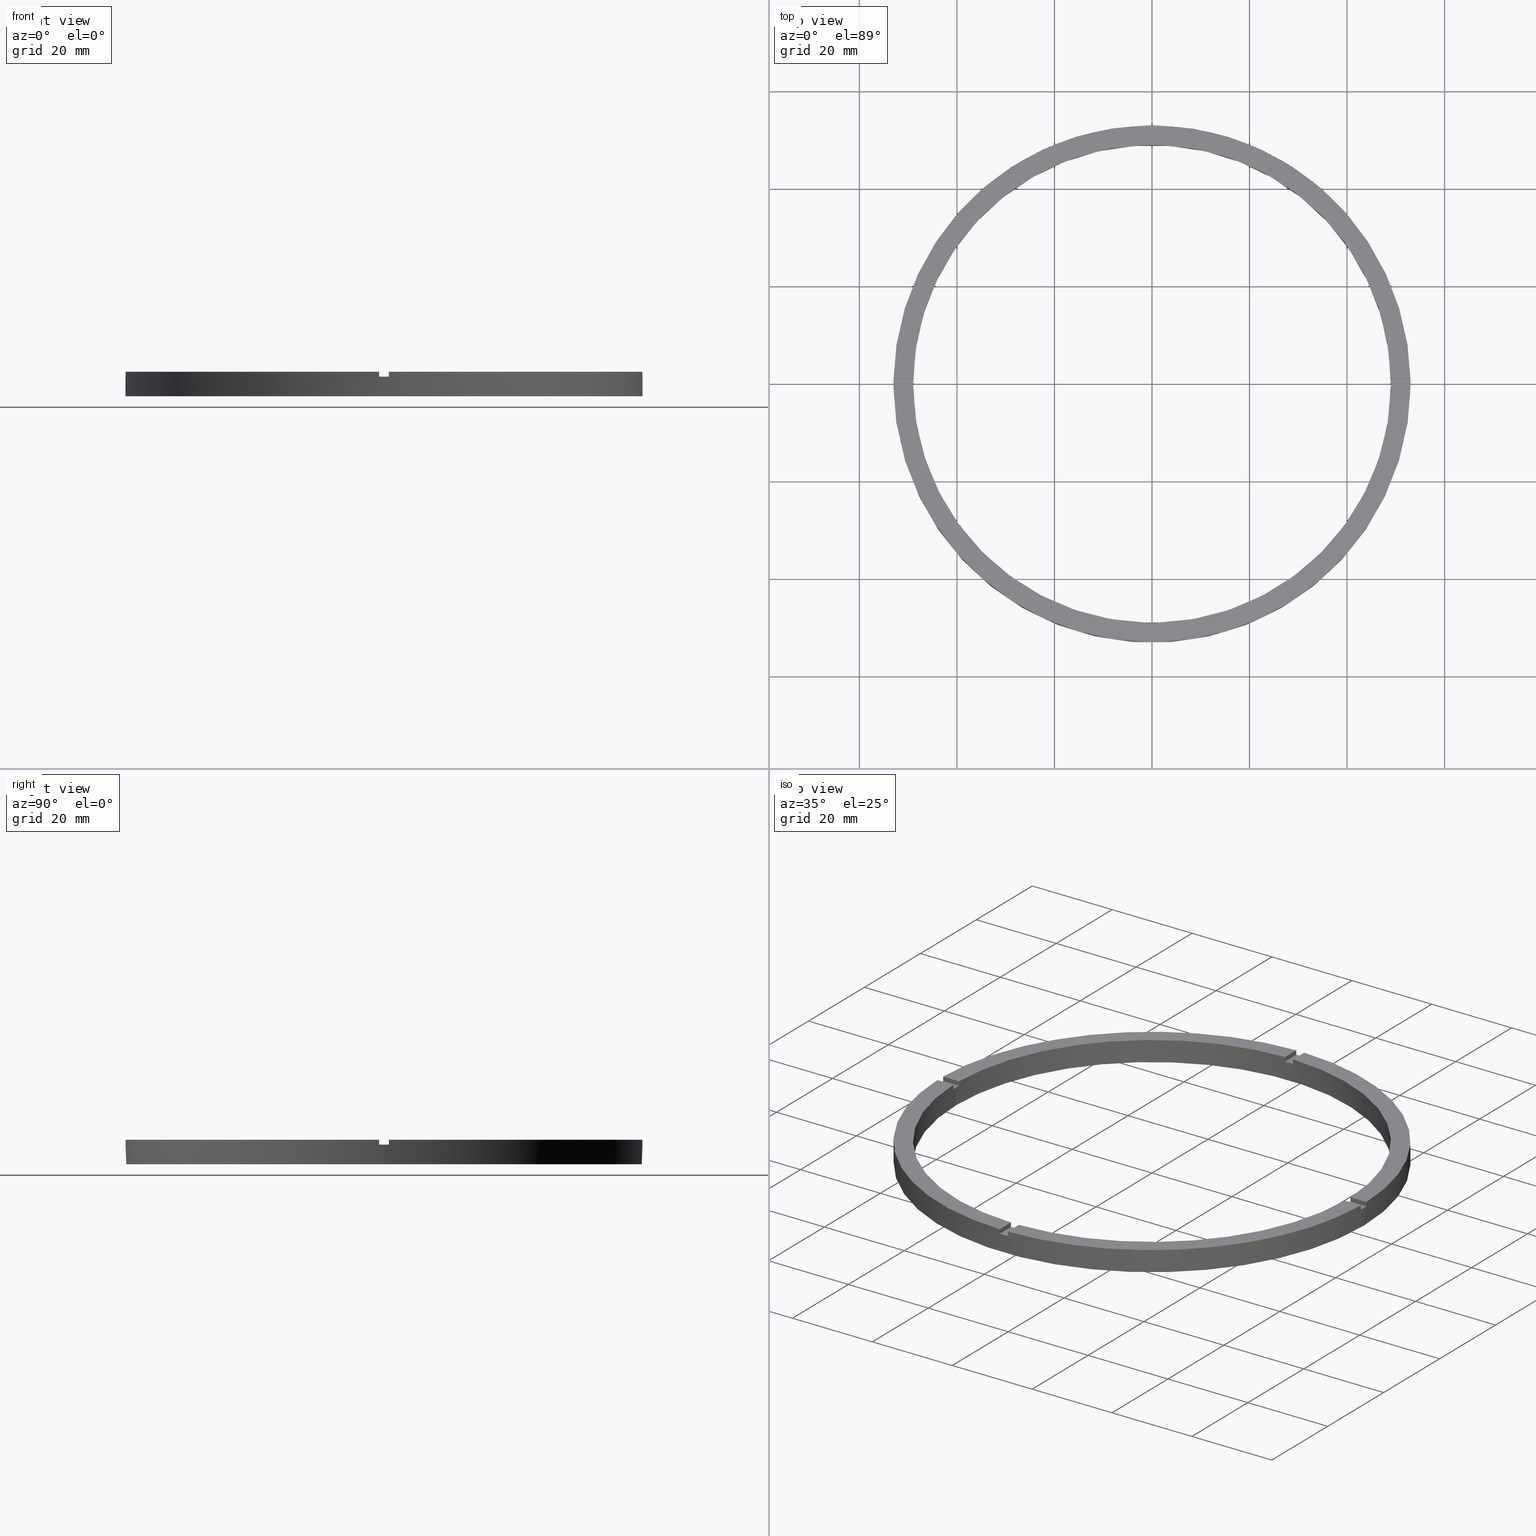
[diagram: canonical four-view strip — front | top / right | iso, engineering-drawing reading convention]
A machine part, canonical four-view strip (front | top / right | iso — engineering-drawing reading convention). The complete STEP part file that produces these views, byte-faithful:
ISO-10303-21;
HEADER;
FILE_DESCRIPTION (( 'STEP AP203' ),
    '1' );
FILE_NAME ('514217.step',
    '2024-12-26T02:49:05',
    ( 'MSI' ),
    ( '' ),
    'SwSTEP 2.0',
    'SolidWorks 2020',
    '' );
FILE_SCHEMA (( 'CONFIG_CONTROL_DESIGN' ));
ENDSEC;

DATA;
#1 = AXIS2_PLACEMENT_3D ( 'NONE', #781, #502, #198 ) ;
#2 = CARTESIAN_POINT ( 'NONE',  ( 0.000000000000000000, 0.000000000000000000, 5.000000000000000000 ) ) ;
#3 = AXIS2_PLACEMENT_3D ( 'NONE', #536, #745, #184 ) ;
#4 = APPROVAL ( #451, 'δָ��' ) ;
#5 = CARTESIAN_POINT ( 'NONE',  ( -52.99056519796708642, -1.000000000000032419, 4.000000000000000000 ) ) ;
#6 = CARTESIAN_POINT ( 'NONE',  ( -1.000000000000027089, 43.00000000000000000, 5.000000000000000000 ) ) ;
#7 = PLANE ( 'NONE',  #181 ) ;
#8 = EDGE_CURVE ( 'NONE', #417, #686, #447, .T. ) ;
#9 = DIRECTION ( 'NONE',  ( 0.000000000000000000, 0.000000000000000000, 1.000000000000000000 ) ) ;
#10 = CARTESIAN_POINT ( 'NONE',  ( 0.9999999999998432365, -48.98979485566356828, 4.000000000000000000 ) ) ;
#11 = DIRECTION ( 'NONE',  ( 0.000000000000000000, 0.000000000000000000, 1.000000000000000000 ) ) ;
#12 = CARTESIAN_POINT ( 'NONE',  ( 53.00000000000000711, 6.490628035480973107E-15, 4.000000000000000000 ) ) ;
#13 = DIRECTION ( 'NONE',  ( 0.000000000000000000, 0.000000000000000000, 1.000000000000000000 ) ) ;
#14 = ADVANCED_FACE ( 'NONE', ( #724 ), #534, .T. ) ;
#15 = EDGE_CURVE ( 'NONE', #193, #726, #308, .T. ) ;
#16 = CARTESIAN_POINT ( 'NONE',  ( 0.000000000000000000, 0.000000000000000000, 4.000000000000000000 ) ) ;
#17 = DIRECTION ( 'NONE',  ( 1.000000000000000000, 0.000000000000000000, -0.000000000000000000 ) ) ;
#18 = AXIS2_PLACEMENT_3D ( 'NONE', #273, #329, #337 ) ;
#19 = CARTESIAN_POINT ( 'NONE',  ( 48.98979485566356118, -1.000000000000154765, 5.000000000000000000 ) ) ;
#20 = DIRECTION ( 'NONE',  ( 1.000000000000000000, 6.505213034913025371E-17, 0.000000000000000000 ) ) ;
#21 = CC_DESIGN_PERSON_AND_ORGANIZATION_ASSIGNMENT ( #108, #390, ( #351 ) ) ;
#22 = DIRECTION ( 'NONE',  ( 1.000000000000000000, 0.000000000000000000, -0.000000000000000000 ) ) ;
#23 = DIRECTION ( 'NONE',  ( 0.000000000000000000, 0.000000000000000000, 1.000000000000000000 ) ) ;
#24 = AXIS2_PLACEMENT_3D ( 'NONE', #556, #476, #315 ) ;
#25 = DIRECTION ( 'NONE',  ( 0.000000000000000000, 0.000000000000000000, 1.000000000000000000 ) ) ;
#26 = DIRECTION ( 'NONE',  ( -0.000000000000000000, -0.000000000000000000, -1.000000000000000000 ) ) ;
#27 = AXIS2_PLACEMENT_3D ( 'NONE', #220, #144, #22 ) ;
#28 = CIRCLE ( 'NONE', #531, 49.00000000000000000 ) ;
#29 = DIRECTION ( 'NONE',  ( 1.000000000000000000, 0.000000000000000000, 0.000000000000000000 ) ) ;
#30 = VECTOR ( 'NONE', #519, 1000.000000000000000 ) ;
#31 = CARTESIAN_POINT ( 'NONE',  ( -43.00000000000019185, 0.9999999999999696909, 5.000000000000000000 ) ) ;
#32 = EDGE_CURVE ( 'NONE', #747, #772, #41, .T. ) ;
#33 = VECTOR ( 'NONE', #23, 1000.000000000000000 ) ;
#34 = VECTOR ( 'NONE', #20, 1000.000000000000000 ) ;
#35 = CARTESIAN_POINT ( 'NONE',  ( -1.000000000000156097, -52.99056519796708642, 5.000000000000000000 ) ) ;
#36 = CIRCLE ( 'NONE', #532, 49.00000000000000000 ) ;
#37 = LINE ( 'NONE', #768, #291 ) ;
#38 = EDGE_CURVE ( 'NONE', #195, #742, #579, .T. ) ;
#39 = LINE ( 'NONE', #19, #584 ) ;
#40 = CARTESIAN_POINT ( 'NONE',  ( -1.000000000000027089, 48.98979485566356118, 4.000000000000000000 ) ) ;
#41 = CIRCLE ( 'NONE', #118, 49.00000000000000000 ) ;
#42 = EDGE_CURVE ( 'NONE', #169, #143, #53, .T. ) ;
#43 = LINE ( 'NONE', #6, #288 ) ;
#44 = FACE_OUTER_BOUND ( 'NONE', #148, .T. ) ;
#45 = CIRCLE ( 'NONE', #500, 49.00000000000000000 ) ;
#46 = VECTOR ( 'NONE', #655, 1000.000000000000000 ) ;
#47 = CARTESIAN_POINT ( 'NONE',  ( 0.000000000000000000, 0.000000000000000000, 4.000000000000000000 ) ) ;
#48 = CIRCLE ( 'NONE', #759, 49.00000000000000000 ) ;
#49 = EDGE_CURVE ( 'NONE', #668, #697, #48, .T. ) ;
#50 = CYLINDRICAL_SURFACE ( 'NONE', #24, 49.00000000000000000 ) ;
#51 = EDGE_CURVE ( 'NONE', #185, #400, #588, .T. ) ;
#52 = DIRECTION ( 'NONE',  ( 0.000000000000000000, 0.000000000000000000, 1.000000000000000000 ) ) ;
#53 = CIRCLE ( 'NONE', #222, 53.00000000000000711 ) ;
#54 = AXIS2_PLACEMENT_3D ( 'NONE', #783, #773, #223 ) ;
#55 = LINE ( 'NONE', #391, #590 ) ;
#56 = LINE ( 'NONE', #529, #34 ) ;
#57 = LINE ( 'NONE', #777, #314 ) ;
#58 = CC_DESIGN_SECURITY_CLASSIFICATION ( #275, ( #309 ) ) ;
#59 = CIRCLE ( 'NONE', #538, 53.00000000000000711 ) ;
#60 = VECTOR ( 'NONE', #771, 1000.000000000000000 ) ;
#61 = PERSON_AND_ORGANIZATION_ROLE ( 'design_owner' ) ;
#62 = VECTOR ( 'NONE', #420, 1000.000000000000000 ) ;
#63 = PERSON_AND_ORGANIZATION ( #80, #639 ) ;
#64 = AXIS2_PLACEMENT_3D ( 'NONE', #255, #243, #278 ) ;
#65 = FACE_OUTER_BOUND ( 'NONE', #452, .T. ) ;
#66 = COORDINATED_UNIVERSAL_TIME_OFFSET ( 8, 0, .AHEAD. ) ;
#67 = LINE ( 'NONE', #553, #321 ) ;
#68 = CARTESIAN_POINT ( 'NONE',  ( -52.99056519796708642, -1.000000000000032419, 5.000000000000000000 ) ) ;
#69 = DIRECTION ( 'NONE',  ( -0.000000000000000000, -0.000000000000000000, -1.000000000000000000 ) ) ;
#70 = FACE_OUTER_BOUND ( 'NONE', #411, .T. ) ;
#71 = DIRECTION ( 'NONE',  ( 1.000000000000000000, 1.951563910473907735E-16, -0.000000000000000000 ) ) ;
#72 = FACE_OUTER_BOUND ( 'NONE', #404, .T. ) ;
#73 = DATE_AND_TIME ( #91, #580 ) ;
#74 = LINE ( 'NONE', #134, #83 ) ;
#75 = CIRCLE ( 'NONE', #234, 49.00000000000000000 ) ;
#76 = CARTESIAN_POINT ( 'NONE',  ( 0.9999999999998425704, -43.00000000000018474, 5.000000000000000000 ) ) ;
#77 = SHAPE_DEFINITION_REPRESENTATION ( #153, #498 ) ;
#78 = DIRECTION ( 'NONE',  ( -0.000000000000000000, 0.000000000000000000, 1.000000000000000000 ) ) ;
#79 = EDGE_CURVE ( 'NONE', #214, #192, #37, .T. ) ;
#80 = PERSON ( 'δָ��', 'δָ��', 'δָ��', ('δָ��'), ('δָ��'), ('δָ��') ) ;
#81 = VECTOR ( 'NONE', #520, 1000.000000000000000 ) ;
#82 = CARTESIAN_POINT ( 'NONE',  ( 0.000000000000000000, 0.000000000000000000, 5.000000000000000000 ) ) ;
#83 = VECTOR ( 'NONE', #690, 1000.000000000000000 ) ;
#84 = LINE ( 'NONE', #640, #89 ) ;
#85 = VECTOR ( 'NONE', #713, 1000.000000000000000 ) ;
#86 = ADVANCED_FACE ( 'NONE', ( #297 ), #269, .T. ) ;
#87 = VECTOR ( 'NONE', #112, 1000.000000000000000 ) ;
#88 = APPROVAL_DATE_TIME ( #619, #474 ) ;
#89 = VECTOR ( 'NONE', #69, 1000.000000000000000 ) ;
#90 = DIRECTION ( 'NONE',  ( 1.301042606982605074E-16, -1.000000000000000000, 0.000000000000000000 ) ) ;
#91 = CALENDAR_DATE ( 2024, 26, 12 ) ;
#92 = EDGE_CURVE ( 'NONE', #240, #445, #299, .T. ) ;
#93 = FACE_OUTER_BOUND ( 'NONE', #754, .T. ) ;
#94 = LINE ( 'NONE', #221, #85 ) ;
#95 = EDGE_CURVE ( 'NONE', #747, #732, #39, .T. ) ;
#96 = LINE ( 'NONE', #213, #359 ) ;
#97 = ADVANCED_FACE ( 'NONE', ( #317 ), #521, .F. ) ;
#98 = FACE_OUTER_BOUND ( 'NONE', #467, .T. ) ;
#99 = CIRCLE ( 'NONE', #122, 49.00000000000000000 ) ;
#100 = LOCAL_TIME ( 10, 49, 5.000000000000000000, #366 ) ;
#101 = CIRCLE ( 'NONE', #541, 49.00000000000000000 ) ;
#102 = CARTESIAN_POINT ( 'NONE',  ( 0.000000000000000000, 0.000000000000000000, 4.000000000000000000 ) ) ;
#103 = CARTESIAN_POINT ( 'NONE',  ( 0.000000000000000000, 0.000000000000000000, 4.000000000000000000 ) ) ;
#104 = EDGE_CURVE ( 'NONE', #772, #672, #570, .T. ) ;
#105 = CALENDAR_DATE ( 2024, 26, 12 ) ;
#106 = EDGE_CURVE ( 'NONE', #185, #678, #45, .T. ) ;
#107 = AXIS2_PLACEMENT_3D ( 'NONE', #656, #228, #395 ) ;
#108 = PERSON_AND_ORGANIZATION ( #80, #639 ) ;
#109 =( GEOMETRIC_REPRESENTATION_CONTEXT ( 3 ) GLOBAL_UNCERTAINTY_ASSIGNED_CONTEXT ( ( #174 ) ) GLOBAL_UNIT_ASSIGNED_CONTEXT ( ( #472, #718, #227 ) ) REPRESENTATION_CONTEXT ( 'NONE', 'WORKASPACE' ) );
#110 = APPROVAL_PERSON_ORGANIZATION ( #368, #483, #511 ) ;
#111 = DIRECTION ( 'NONE',  ( 1.000000000000000000, 0.000000000000000000, 0.000000000000000000 ) ) ;
#112 = DIRECTION ( 'NONE',  ( 0.000000000000000000, 0.000000000000000000, 1.000000000000000000 ) ) ;
#113 = CARTESIAN_POINT ( 'NONE',  ( 53.00000000000000711, 6.490628035480973107E-15, 0.000000000000000000 ) ) ;
#114 = DIRECTION ( 'NONE',  ( 0.000000000000000000, 0.000000000000000000, 1.000000000000000000 ) ) ;
#115 = DIRECTION ( 'NONE',  ( 1.000000000000000000, 0.000000000000000000, 0.000000000000000000 ) ) ;
#116 = EDGE_CURVE ( 'NONE', #686, #178, #565, .T. ) ;
#117 = ORIENTED_EDGE ( 'NONE', *, *, #641, .F. ) ;
#118 = AXIS2_PLACEMENT_3D ( 'NONE', #776, #25, #551 ) ;
#119 = AXIS2_PLACEMENT_3D ( 'NONE', #514, #233, #569 ) ;
#120 = DIRECTION ( 'NONE',  ( -0.000000000000000000, -1.000000000000000000, -0.000000000000000000 ) ) ;
#121 = CARTESIAN_POINT ( 'NONE',  ( -52.99056519796708642, 0.9999999999999676925, 5.000000000000000000 ) ) ;
#122 = AXIS2_PLACEMENT_3D ( 'NONE', #16, #385, #635 ) ;
#123 = ORIENTED_EDGE ( 'NONE', *, *, #659, .T. ) ;
#124 = DIRECTION ( 'NONE',  ( -6.505213034913025371E-17, 1.000000000000000000, 0.000000000000000000 ) ) ;
#125 = ADVANCED_FACE ( 'NONE', ( #307 ), #554, .F. ) ;
#126 = DIRECTION ( 'NONE',  ( -1.000000000000000000, 0.000000000000000000, 0.000000000000000000 ) ) ;
#127 = ORIENTED_EDGE ( 'NONE', *, *, #589, .T. ) ;
#128 = DIRECTION ( 'NONE',  ( -0.000000000000000000, -0.000000000000000000, -1.000000000000000000 ) ) ;
#129 = EDGE_LOOP ( 'NONE', ( #127, #203, #182, #446, #737, #670 ) ) ;
#130 = EDGE_CURVE ( 'NONE', #739, #697, #576, .T. ) ;
#131 = AXIS2_PLACEMENT_3D ( 'NONE', #533, #585, #111 ) ;
#132 = EDGE_LOOP ( 'NONE', ( #700, #719 ) ) ;
#133 = ORIENTED_EDGE ( 'NONE', *, *, #95, .F. ) ;
#134 = CARTESIAN_POINT ( 'NONE',  ( 43.00000000000000000, 0.9999999999998447908, 5.000000000000000000 ) ) ;
#135 = DIRECTION ( 'NONE',  ( 0.000000000000000000, 0.000000000000000000, 1.000000000000000000 ) ) ;
#136 = VERTEX_POINT ( 'NONE', #12 ) ;
#137 = DIRECTION ( 'NONE',  ( -1.951563910473907735E-16, 1.000000000000000000, 0.000000000000000000 ) ) ;
#138 = CC_DESIGN_APPROVAL ( #4, ( #309 ) ) ;
#139 = ADVANCED_FACE ( 'NONE', ( #577 ), #689, .F. ) ;
#140 = VERTEX_POINT ( 'NONE', #205 ) ;
#141 = CARTESIAN_POINT ( 'NONE',  ( -1.000000000000157430, -43.00000000000018474, 4.000000000000000000 ) ) ;
#142 = EDGE_LOOP ( 'NONE', ( #491, #435, #409, #170 ) ) ;
#143 = VERTEX_POINT ( 'NONE', #355 ) ;
#144 = DIRECTION ( 'NONE',  ( 0.000000000000000000, 0.000000000000000000, 1.000000000000000000 ) ) ;
#145 = ORIENTED_EDGE ( 'NONE', *, *, #402, .T. ) ;
#146 = VERTEX_POINT ( 'NONE', #744 ) ;
#147 = DIRECTION ( 'NONE',  ( 0.000000000000000000, 0.000000000000000000, 1.000000000000000000 ) ) ;
#148 = EDGE_LOOP ( 'NONE', ( #149, #235, #706, #156, #688, #175, #720, #685, #226, #155, #199, #133 ) ) ;
#149 = ORIENTED_EDGE ( 'NONE', *, *, #32, .T. ) ;
#150 = VERTEX_POINT ( 'NONE', #544 ) ;
#151 = ORIENTED_EDGE ( 'NONE', *, *, #492, .F. ) ;
#152 = VERTEX_POINT ( 'NONE', #540 ) ;
#153 = PRODUCT_DEFINITION_SHAPE ( 'NONE', 'NONE',  #351 ) ;
#154 = ORIENTED_EDGE ( 'NONE', *, *, #410, .F. ) ;
#155 = ORIENTED_EDGE ( 'NONE', *, *, #493, .F. ) ;
#156 = ORIENTED_EDGE ( 'NONE', *, *, #116, .F. ) ;
#157 = ORIENTED_EDGE ( 'NONE', *, *, #286, .F. ) ;
#158 = ORIENTED_EDGE ( 'NONE', *, *, #608, .F. ) ;
#159 = DIRECTION ( 'NONE',  ( -0.000000000000000000, 0.000000000000000000, 1.000000000000000000 ) ) ;
#160 = VERTEX_POINT ( 'NONE', #251 ) ;
#161 = ORIENTED_EDGE ( 'NONE', *, *, #517, .T. ) ;
#162 = DIRECTION ( 'NONE',  ( 1.301042606982605074E-16, -1.000000000000000000, 0.000000000000000000 ) ) ;
#163 = ORIENTED_EDGE ( 'NONE', *, *, #340, .T. ) ;
#164 = ORIENTED_EDGE ( 'NONE', *, *, #675, .T. ) ;
#165 = VERTEX_POINT ( 'NONE', #113 ) ;
#166 = ORIENTED_EDGE ( 'NONE', *, *, #290, .T. ) ;
#167 = ORIENTED_EDGE ( 'NONE', *, *, #8, .T. ) ;
#168 = ORIENTED_EDGE ( 'NONE', *, *, #375, .T. ) ;
#169 = VERTEX_POINT ( 'NONE', #376 ) ;
#170 = ORIENTED_EDGE ( 'NONE', *, *, #734, .F. ) ;
#171 = EDGE_CURVE ( 'NONE', #183, #136, #562, .T. ) ;
#172 = ORIENTED_EDGE ( 'NONE', *, *, #345, .F. ) ;
#173 = ORIENTED_EDGE ( 'NONE', *, *, #457, .F. ) ;
#174 = UNCERTAINTY_MEASURE_WITH_UNIT (LENGTH_MEASURE( 1.000000000000000082E-05 ), #472, 'distance_accuracy_value', 'NONE');
#175 = ORIENTED_EDGE ( 'NONE', *, *, #242, .F. ) ;
#176 = ORIENTED_EDGE ( 'NONE', *, *, #410, .T. ) ;
#177 = ORIENTED_EDGE ( 'NONE', *, *, #51, .T. ) ;
#178 = VERTEX_POINT ( 'NONE', #190 ) ;
#179 = DIRECTION ( 'NONE',  ( -0.000000000000000000, -1.000000000000000000, -0.000000000000000000 ) ) ;
#180 = ORIENTED_EDGE ( 'NONE', *, *, #246, .F. ) ;
#181 = AXIS2_PLACEMENT_3D ( 'NONE', #699, #124, #766 ) ;
#182 = ORIENTED_EDGE ( 'NONE', *, *, #425, .T. ) ;
#183 = VERTEX_POINT ( 'NONE', #422 ) ;
#184 = DIRECTION ( 'NONE',  ( -1.000000000000000000, 0.000000000000000000, 0.000000000000000000 ) ) ;
#185 = VERTEX_POINT ( 'NONE', #508 ) ;
#186 = ORIENTED_EDGE ( 'NONE', *, *, #262, .T. ) ;
#187 = AXIS2_PLACEMENT_3D ( 'NONE', #346, #487, #357 ) ;
#188 = PLANE ( 'NONE',  #740 ) ;
#189 = ORIENTED_EDGE ( 'NONE', *, *, #330, .F. ) ;
#190 = CARTESIAN_POINT ( 'NONE',  ( -49.00000000000000000, 0.000000000000000000, 0.000000000000000000 ) ) ;
#191 = ORIENTED_EDGE ( 'NONE', *, *, #753, .F. ) ;
#192 = VERTEX_POINT ( 'NONE', #499 ) ;
#193 = VERTEX_POINT ( 'NONE', #494 ) ;
#194 = ORIENTED_EDGE ( 'NONE', *, *, #756, .F. ) ;
#195 = VERTEX_POINT ( 'NONE', #244 ) ;
#196 = CARTESIAN_POINT ( 'NONE',  ( 0.9999999999998439026, -52.99056519796709352, 4.000000000000000000 ) ) ;
#197 = EDGE_CURVE ( 'NONE', #150, #445, #312, .T. ) ;
#198 = DIRECTION ( 'NONE',  ( 1.000000000000000000, 1.951563910473907735E-16, 0.000000000000000000 ) ) ;
#199 = ORIENTED_EDGE ( 'NONE', *, *, #470, .T. ) ;
#200 = ORIENTED_EDGE ( 'NONE', *, *, #340, .F. ) ;
#201 = ADVANCED_FACE ( 'NONE', ( #571 ), #295, .T. ) ;
#202 = ORIENTED_EDGE ( 'NONE', *, *, #778, .T. ) ;
#203 = ORIENTED_EDGE ( 'NONE', *, *, #608, .T. ) ;
#204 = ORIENTED_EDGE ( 'NONE', *, *, #379, .T. ) ;
#205 = CARTESIAN_POINT ( 'NONE',  ( -1.000000000000156097, -52.99056519796708642, 4.000000000000000000 ) ) ;
#206 = CARTESIAN_POINT ( 'NONE',  ( 0.000000000000000000, 0.000000000000000000, 5.000000000000000000 ) ) ;
#207 = EDGE_CURVE ( 'NONE', #195, #240, #43, .T. ) ;
#208 = ORIENTED_EDGE ( 'NONE', *, *, #383, .F. ) ;
#209 = ORIENTED_EDGE ( 'NONE', *, *, #330, .T. ) ;
#210 = ORIENTED_EDGE ( 'NONE', *, *, #457, .T. ) ;
#211 = DIRECTION ( 'NONE',  ( 1.000000000000000000, 1.301042606982605074E-16, 0.000000000000000000 ) ) ;
#212 = ORIENTED_EDGE ( 'NONE', *, *, #375, .F. ) ;
#213 = CARTESIAN_POINT ( 'NONE',  ( 0.9999999999999729106, 43.00000000000000000, 5.000000000000000000 ) ) ;
#214 = VERTEX_POINT ( 'NONE', #549 ) ;
#215 = PLANE ( 'NONE',  #510 ) ;
#216 = VERTEX_POINT ( 'NONE', #416 ) ;
#217 = EDGE_LOOP ( 'NONE', ( #164, #694, #714, #484 ) ) ;
#218 = ORIENTED_EDGE ( 'NONE', *, *, #546, .T. ) ;
#219 = ORIENTED_EDGE ( 'NONE', *, *, #675, .F. ) ;
#220 = CARTESIAN_POINT ( 'NONE',  ( 0.000000000000000000, 0.000000000000000000, 4.000000000000000000 ) ) ;
#221 = CARTESIAN_POINT ( 'NONE',  ( -48.98979485566356118, 0.9999999999999685807, 5.000000000000000000 ) ) ;
#222 = AXIS2_PLACEMENT_3D ( 'NONE', #573, #305, #650 ) ;
#223 = DIRECTION ( 'NONE',  ( 1.000000000000000000, 0.000000000000000000, -0.000000000000000000 ) ) ;
#224 = AXIS2_PLACEMENT_3D ( 'NONE', #280, #245, #595 ) ;
#225 = ADVANCED_FACE ( 'NONE', ( #581 ), #247, .F. ) ;
#226 = ORIENTED_EDGE ( 'NONE', *, *, #106, .T. ) ;
#227 =( NAMED_UNIT ( * ) SI_UNIT ( $, .STERADIAN. ) SOLID_ANGLE_UNIT ( ) );
#228 = DIRECTION ( 'NONE',  ( 0.000000000000000000, 0.000000000000000000, 1.000000000000000000 ) ) ;
#229 = ORIENTED_EDGE ( 'NONE', *, *, #38, .F. ) ;
#230 = CARTESIAN_POINT ( 'NONE',  ( 0.000000000000000000, 0.000000000000000000, 4.000000000000000000 ) ) ;
#231 = DIRECTION ( 'NONE',  ( 1.000000000000000000, 6.505213034913025371E-17, 0.000000000000000000 ) ) ;
#232 = ORIENTED_EDGE ( 'NONE', *, *, #641, .T. ) ;
#233 = DIRECTION ( 'NONE',  ( 0.000000000000000000, 0.000000000000000000, 1.000000000000000000 ) ) ;
#234 = AXIS2_PLACEMENT_3D ( 'NONE', #466, #480, #516 ) ;
#235 = ORIENTED_EDGE ( 'NONE', *, *, #104, .T. ) ;
#236 = DIRECTION ( 'NONE',  ( 1.000000000000000000, 0.000000000000000000, 0.000000000000000000 ) ) ;
#237 = ORIENTED_EDGE ( 'NONE', *, *, #470, .F. ) ;
#238 = ORIENTED_EDGE ( 'NONE', *, *, #523, .F. ) ;
#239 = PLANE ( 'NONE',  #646 ) ;
#240 = VERTEX_POINT ( 'NONE', #673 ) ;
#241 = CARTESIAN_POINT ( 'NONE',  ( 0.000000000000000000, 0.000000000000000000, 0.000000000000000000 ) ) ;
#242 = EDGE_CURVE ( 'NONE', #192, #433, #559, .T. ) ;
#243 = DIRECTION ( 'NONE',  ( 0.000000000000000000, -0.000000000000000000, 1.000000000000000000 ) ) ;
#244 = CARTESIAN_POINT ( 'NONE',  ( -1.000000000000027089, 52.99056519796708642, 5.000000000000000000 ) ) ;
#245 = DIRECTION ( 'NONE',  ( 0.000000000000000000, 0.000000000000000000, 1.000000000000000000 ) ) ;
#246 = EDGE_CURVE ( 'NONE', #192, #400, #28, .T. ) ;
#247 = PLANE ( 'NONE',  #1 ) ;
#248 = ADVANCED_FACE ( 'NONE', ( #563, #310 ), #537, .F. ) ;
#249 = CARTESIAN_POINT ( 'NONE',  ( 0.000000000000000000, 0.000000000000000000, 0.000000000000000000 ) ) ;
#250 = APPROVAL_ROLE ( '' ) ;
#251 = CARTESIAN_POINT ( 'NONE',  ( 52.99056519796708642, -1.000000000000154543, 5.000000000000000000 ) ) ;
#252 = DIRECTION ( 'NONE',  ( 0.000000000000000000, 0.000000000000000000, 1.000000000000000000 ) ) ;
#253 = DATE_TIME_ROLE ( 'creation_date' ) ;
#254 = DESIGN_CONTEXT ( 'detailed design', #377, 'design' ) ;
#255 = CARTESIAN_POINT ( 'NONE',  ( 0.000000000000000000, 0.000000000000000000, 4.000000000000000000 ) ) ;
#256 = CARTESIAN_POINT ( 'NONE',  ( 0.000000000000000000, 0.000000000000000000, 4.000000000000000000 ) ) ;
#257 = CARTESIAN_POINT ( 'NONE',  ( 48.98979485566356118, -1.000000000000154765, 5.000000000000000000 ) ) ;
#258 = DIRECTION ( 'NONE',  ( 0.000000000000000000, 0.000000000000000000, 1.000000000000000000 ) ) ;
#259 = DIRECTION ( 'NONE',  ( 1.000000000000000000, 0.000000000000000000, 0.000000000000000000 ) ) ;
#260 = CARTESIAN_POINT ( 'NONE',  ( 48.98979485566356118, -1.000000000000154765, 4.000000000000000000 ) ) ;
#261 = CARTESIAN_POINT ( 'NONE',  ( 43.00000000000000000, -1.000000000000155209, 4.000000000000000000 ) ) ;
#262 = EDGE_CURVE ( 'NONE', #462, #742, #281, .T. ) ;
#263 = DIRECTION ( 'NONE',  ( 0.000000000000000000, 0.000000000000000000, 1.000000000000000000 ) ) ;
#264 = ADVANCED_FACE ( 'NONE', ( #44 ), #50, .F. ) ;
#265 = AXIS2_PLACEMENT_3D ( 'NONE', #103, #11, #702 ) ;
#266 = PLANE ( 'NONE',  #18 ) ;
#267 = EDGE_CURVE ( 'NONE', #178, #672, #583, .T. ) ;
#268 = DIRECTION ( 'NONE',  ( 0.000000000000000000, 0.000000000000000000, 1.000000000000000000 ) ) ;
#269 = PLANE ( 'NONE',  #265 ) ;
#270 = CARTESIAN_POINT ( 'NONE',  ( 0.9999999999999729106, 52.99056519796708642, 5.000000000000000000 ) ) ;
#271 = CARTESIAN_POINT ( 'NONE',  ( 43.00000000000000000, -1.000000000000155209, 4.000000000000000000 ) ) ;
#272 = EDGE_CURVE ( 'NONE', #668, #152, #57, .T. ) ;
#273 = CARTESIAN_POINT ( 'NONE',  ( 0.9999999999999729106, 43.00000000000000000, 4.000000000000000000 ) ) ;
#274 = AXIS2_PLACEMENT_3D ( 'NONE', #102, #159, #392 ) ;
#275 = SECURITY_CLASSIFICATION ( '', '', #705 ) ;
#276 = CARTESIAN_POINT ( 'NONE',  ( 0.000000000000000000, 0.000000000000000000, 4.000000000000000000 ) ) ;
#277 = DIRECTION ( 'NONE',  ( 0.000000000000000000, 0.000000000000000000, 1.000000000000000000 ) ) ;
#278 = DIRECTION ( 'NONE',  ( 1.000000000000000000, 0.000000000000000000, 0.000000000000000000 ) ) ;
#279 = APPROVAL_STATUS ( 'not_yet_approved' ) ;
#280 = CARTESIAN_POINT ( 'NONE',  ( 0.000000000000000000, 0.000000000000000000, 5.000000000000000000 ) ) ;
#281 = LINE ( 'NONE', #31, #285 ) ;
#282 = LINE ( 'NONE', #644, #587 ) ;
#283 = MANIFOLD_SOLID_BREP ( '�г�-����1', #725 ) ;
#284 = DATE_TIME_ROLE ( 'classification_date' ) ;
#285 = VECTOR ( 'NONE', #765, 1000.000000000000000 ) ;
#286 = EDGE_CURVE ( 'NONE', #400, #408, #55, .T. ) ;
#287 = ADVANCED_FACE ( 'NONE', ( #558 ), #239, .F. ) ;
#288 = VECTOR ( 'NONE', #179, 1000.000000000000000 ) ;
#289 = DIRECTION ( 'NONE',  ( 0.000000000000000000, 0.000000000000000000, 1.000000000000000000 ) ) ;
#290 = EDGE_CURVE ( 'NONE', #169, #216, #302, .T. ) ;
#291 = VECTOR ( 'NONE', #71, 1000.000000000000000 ) ;
#292 = FACE_OUTER_BOUND ( 'NONE', #142, .T. ) ;
#293 = CIRCLE ( 'NONE', #387, 53.00000000000000711 ) ;
#294 = CC_DESIGN_PERSON_AND_ORGANIZATION_ASSIGNMENT ( #630, #460, ( #309 ) ) ;
#295 = CYLINDRICAL_SURFACE ( 'NONE', #427, 53.00000000000000711 ) ;
#296 = CARTESIAN_POINT ( 'NONE',  ( -52.99056519796708642, 0.9999999999999676925, 5.000000000000000000 ) ) ;
#297 = FACE_OUTER_BOUND ( 'NONE', #129, .T. ) ;
#298 = VECTOR ( 'NONE', #736, 1000.000000000000000 ) ;
#299 = LINE ( 'NONE', #518, #319 ) ;
#300 = CARTESIAN_POINT ( 'NONE',  ( 0.000000000000000000, 0.000000000000000000, 4.000000000000000000 ) ) ;
#301 = DIRECTION ( 'NONE',  ( -1.301042606982605074E-16, 1.000000000000000000, 0.000000000000000000 ) ) ;
#302 = LINE ( 'NONE', #469, #316 ) ;
#303 = CARTESIAN_POINT ( 'NONE',  ( 0.9999999999998425704, -43.00000000000018474, 4.000000000000000000 ) ) ;
#304 = VECTOR ( 'NONE', #774, 1000.000000000000000 ) ;
#305 = DIRECTION ( 'NONE',  ( 0.000000000000000000, 0.000000000000000000, 1.000000000000000000 ) ) ;
#306 = ADVANCED_FACE ( 'NONE', ( #568 ), #266, .F. ) ;
#307 = FACE_OUTER_BOUND ( 'NONE', #746, .T. ) ;
#308 = LINE ( 'NONE', #779, #298 ) ;
#309 = PRODUCT_DEFINITION_FORMATION_WITH_SPECIFIED_SOURCE ( '�κ�', '', #405, .NOT_KNOWN. ) ;
#310 = FACE_BOUND ( 'NONE', #132, .T. ) ;
#311 = CARTESIAN_POINT ( 'NONE',  ( 0.9999999999999729106, 48.98979485566356118, 4.000000000000000000 ) ) ;
#312 = LINE ( 'NONE', #371, #575 ) ;
#313 = DIRECTION ( 'NONE',  ( 0.000000000000000000, 0.000000000000000000, 1.000000000000000000 ) ) ;
#314 = VECTOR ( 'NONE', #26, 1000.000000000000000 ) ;
#315 = DIRECTION ( 'NONE',  ( -1.000000000000000000, 0.000000000000000000, 0.000000000000000000 ) ) ;
#316 = VECTOR ( 'NONE', #401, 1000.000000000000000 ) ;
#317 = FACE_OUTER_BOUND ( 'NONE', #461, .T. ) ;
#318 = CARTESIAN_POINT ( 'NONE',  ( -49.00000000000000000, 0.000000000000000000, 4.000000000000000000 ) ) ;
#319 = VECTOR ( 'NONE', #128, 1000.000000000000000 ) ;
#320 = CIRCLE ( 'NONE', #365, 53.00000000000000711 ) ;
#321 = VECTOR ( 'NONE', #464, 1000.000000000000000 ) ;
#322 = FACE_OUTER_BOUND ( 'NONE', #463, .T. ) ;
#323 = COORDINATED_UNIVERSAL_TIME_OFFSET ( 8, 0, .AHEAD. ) ;
#324 = PLANE ( 'NONE',  #274 ) ;
#325 = CIRCLE ( 'NONE', #131, 53.00000000000000711 ) ;
#326 = DATE_AND_TIME ( #328, #332 ) ;
#327 = LINE ( 'NONE', #453, #331 ) ;
#328 = CALENDAR_DATE ( 2024, 26, 12 ) ;
#329 = DIRECTION ( 'NONE',  ( 1.000000000000000000, -0.000000000000000000, 0.000000000000000000 ) ) ;
#330 = EDGE_CURVE ( 'NONE', #185, #140, #564, .T. ) ;
#331 = VECTOR ( 'NONE', #277, 1000.000000000000000 ) ;
#332 = LOCAL_TIME ( 10, 49, 5.000000000000000000, #323 ) ;
#333 = DIRECTION ( 'NONE',  ( 0.000000000000000000, 0.000000000000000000, 1.000000000000000000 ) ) ;
#334 = VECTOR ( 'NONE', #671, 1000.000000000000000 ) ;
#335 = CARTESIAN_POINT ( 'NONE',  ( 0.9999999999999729106, 43.00000000000000000, 4.000000000000000000 ) ) ;
#336 = FACE_OUTER_BOUND ( 'NONE', #722, .T. ) ;
#337 = DIRECTION ( 'NONE',  ( 0.000000000000000000, 0.000000000000000000, -1.000000000000000000 ) ) ;
#338 = LINE ( 'NONE', #76, #81 ) ;
#339 = VECTOR ( 'NONE', #542, 1000.000000000000000 ) ;
#340 = EDGE_CURVE ( 'NONE', #406, #481, #282, .T. ) ;
#341 = CIRCLE ( 'NONE', #224, 53.00000000000000711 ) ;
#342 = DIRECTION ( 'NONE',  ( 1.000000000000000000, 0.000000000000000000, 0.000000000000000000 ) ) ;
#343 = APPROVAL_DATE_TIME ( #326, #4 ) ;
#344 = CIRCLE ( 'NONE', #593, 49.00000000000000000 ) ;
#345 = EDGE_CURVE ( 'NONE', #732, #160, #56, .T. ) ;
#346 = CARTESIAN_POINT ( 'NONE',  ( 0.000000000000000000, 0.000000000000000000, 5.000000000000000000 ) ) ;
#347 = VECTOR ( 'NONE', #620, 1000.000000000000000 ) ;
#348 = LINE ( 'NONE', #539, #334 ) ;
#349 = PERSON_AND_ORGANIZATION ( #80, #639 ) ;
#350 = LINE ( 'NONE', #261, #611 ) ;
#351 = PRODUCT_DEFINITION ( 'δ֪', '', #309, #254 ) ;
#352 = APPROVAL_PERSON_ORGANIZATION ( #349, #4, #687 ) ;
#353 = LINE ( 'NONE', #296, #623 ) ;
#354 = CARTESIAN_POINT ( 'NONE',  ( -48.98979485566356118, 0.9999999999999685807, 4.000000000000000000 ) ) ;
#355 = CARTESIAN_POINT ( 'NONE',  ( 0.9999999999999729106, 52.99056519796708642, 5.000000000000000000 ) ) ;
#356 = CALENDAR_DATE ( 2024, 26, 12 ) ;
#357 = DIRECTION ( 'NONE',  ( 1.000000000000000000, 0.000000000000000000, 0.000000000000000000 ) ) ;
#358 = LINE ( 'NONE', #270, #596 ) ;
#359 = VECTOR ( 'NONE', #388, 1000.000000000000000 ) ;
#360 = CALENDAR_DATE ( 2024, 26, 12 ) ;
#361 = LINE ( 'NONE', #364, #62 ) ;
#362 = PERSON_AND_ORGANIZATION ( #80, #639 ) ;
#363 = LINE ( 'NONE', #664, #339 ) ;
#364 = CARTESIAN_POINT ( 'NONE',  ( 0.9999999999998432365, -48.98979485566356828, 5.000000000000000000 ) ) ;
#365 = AXIS2_PLACEMENT_3D ( 'NONE', #475, #135, #701 ) ;
#366 = COORDINATED_UNIVERSAL_TIME_OFFSET ( 8, 0, .AHEAD. ) ;
#367 = APPROVAL_PERSON_ORGANIZATION ( #362, #474, #250 ) ;
#368 = PERSON_AND_ORGANIZATION ( #80, #639 ) ;
#369 = APPROVAL_DATE_TIME ( #645, #483 ) ;
#370 = CARTESIAN_POINT ( 'NONE',  ( 0.000000000000000000, 0.000000000000000000, 5.000000000000000000 ) ) ;
#371 = CARTESIAN_POINT ( 'NONE',  ( -1.000000000000027089, 43.00000000000000000, 4.000000000000000000 ) ) ;
#372 = COORDINATED_UNIVERSAL_TIME_OFFSET ( 8, 0, .AHEAD. ) ;
#373 = APPLICATION_CONTEXT ( 'configuration controlled 3d designs of mechanical parts and assemblies' ) ;
#374 = ADVANCED_FACE ( 'NONE', ( #292 ), #522, .T. ) ;
#375 = EDGE_CURVE ( 'NONE', #739, #445, #36, .T. ) ;
#376 = CARTESIAN_POINT ( 'NONE',  ( 52.99056519796709352, 0.9999999999998454570, 5.000000000000000000 ) ) ;
#377 = APPLICATION_CONTEXT ( 'configuration controlled 3d designs of mechanical parts and assemblies' ) ;
#378 = AXIS2_PLACEMENT_3D ( 'NONE', #47, #114, #444 ) ;
#379 = EDGE_CURVE ( 'NONE', #726, #165, #293, .T. ) ;
#380 = CARTESIAN_POINT ( 'NONE',  ( -52.99056519796708642, 0.9999999999999676925, 4.000000000000000000 ) ) ;
#381 = CARTESIAN_POINT ( 'NONE',  ( 48.98979485566356828, 0.9999999999998452349, 5.000000000000000000 ) ) ;
#382 = CARTESIAN_POINT ( 'NONE',  ( 49.00000000000000000, 6.000769315822030937E-15, 5.000000000000000000 ) ) ;
#383 = EDGE_CURVE ( 'NONE', #140, #408, #622, .T. ) ;
#384 = AXIS2_PLACEMENT_3D ( 'NONE', #634, #665, #667 ) ;
#385 = DIRECTION ( 'NONE',  ( 0.000000000000000000, 0.000000000000000000, 1.000000000000000000 ) ) ;
#386 = DIRECTION ( 'NONE',  ( 0.000000000000000000, 1.000000000000000000, 0.000000000000000000 ) ) ;
#387 = AXIS2_PLACEMENT_3D ( 'NONE', #241, #597, #407 ) ;
#388 = DIRECTION ( 'NONE',  ( 0.000000000000000000, 1.000000000000000000, 0.000000000000000000 ) ) ;
#389 = CC_DESIGN_DATE_AND_TIME_ASSIGNMENT ( #603, #284, ( #275 ) ) ;
#390 = PERSON_AND_ORGANIZATION_ROLE ( 'creator' ) ;
#391 = CARTESIAN_POINT ( 'NONE',  ( -1.000000000000157430, -43.00000000000018474, 5.000000000000000000 ) ) ;
#392 = DIRECTION ( 'NONE',  ( 1.000000000000000000, 0.000000000000000000, 0.000000000000000000 ) ) ;
#393 = CARTESIAN_POINT ( 'NONE',  ( 0.000000000000000000, 0.000000000000000000, 4.000000000000000000 ) ) ;
#394 = DIRECTION ( 'NONE',  ( -0.000000000000000000, 0.000000000000000000, 1.000000000000000000 ) ) ;
#395 = DIRECTION ( 'NONE',  ( 1.000000000000000000, 0.000000000000000000, 0.000000000000000000 ) ) ;
#396 = EDGE_LOOP ( 'NONE', ( #501, #431, #176, #758, #163, #238, #679, #173, #703, #158, #733, #204 ) ) ;
#397 = ORIENTED_EDGE ( 'NONE', *, *, #523, .T. ) ;
#398 = PLANE ( 'NONE',  #609 ) ;
#399 = ORIENTED_EDGE ( 'NONE', *, *, #286, .T. ) ;
#400 = VERTEX_POINT ( 'NONE', #663 ) ;
#401 = DIRECTION ( 'NONE',  ( -0.000000000000000000, -0.000000000000000000, -1.000000000000000000 ) ) ;
#402 = EDGE_CURVE ( 'NONE', #406, #160, #607, .T. ) ;
#403 = VERTEX_POINT ( 'NONE', #380 ) ;
#404 = EDGE_LOOP ( 'NONE', ( #437, #761, #423, #154 ) ) ;
#405 = PRODUCT ( '514217', '514217', '', ( #503 ) ) ;
#406 = VERTEX_POINT ( 'NONE', #497 ) ;
#407 = DIRECTION ( 'NONE',  ( 1.000000000000000000, 0.000000000000000000, 0.000000000000000000 ) ) ;
#408 = VERTEX_POINT ( 'NONE', #429 ) ;
#409 = ORIENTED_EDGE ( 'NONE', *, *, #262, .F. ) ;
#410 = EDGE_CURVE ( 'NONE', #183, #160, #327, .T. ) ;
#411 = EDGE_LOOP ( 'NONE', ( #473, #442, #770, #507, #715, #168, #438, #717, #432, #167, #428, #505 ) ) ;
#412 = ORIENTED_EDGE ( 'NONE', *, *, #548, .T. ) ;
#413 = CARTESIAN_POINT ( 'NONE',  ( -48.98979485566356118, -1.000000000000031530, 4.000000000000000000 ) ) ;
#414 = AXIS2_PLACEMENT_3D ( 'NONE', #256, #743, #342 ) ;
#415 = EDGE_CURVE ( 'NONE', #195, #150, #363, .T. ) ;
#416 = CARTESIAN_POINT ( 'NONE',  ( 52.99056519796709352, 0.9999999999998454570, 4.000000000000000000 ) ) ;
#417 = VERTEX_POINT ( 'NONE', #354 ) ;
#418 = ORIENTED_EDGE ( 'NONE', *, *, #517, .F. ) ;
#419 = ORIENTED_EDGE ( 'NONE', *, *, #643, .F. ) ;
#420 = DIRECTION ( 'NONE',  ( -0.000000000000000000, -0.000000000000000000, -1.000000000000000000 ) ) ;
#421 = ORIENTED_EDGE ( 'NONE', *, *, #171, .T. ) ;
#422 = CARTESIAN_POINT ( 'NONE',  ( 52.99056519796708642, -1.000000000000154543, 4.000000000000000000 ) ) ;
#423 = ORIENTED_EDGE ( 'NONE', *, *, #345, .T. ) ;
#424 = ORIENTED_EDGE ( 'NONE', *, *, #780, .T. ) ;
#425 = EDGE_CURVE ( 'NONE', #454, #433, #348, .T. ) ;
#426 = ORIENTED_EDGE ( 'NONE', *, *, #643, .T. ) ;
#427 = AXIS2_PLACEMENT_3D ( 'NONE', #370, #606, #662 ) ;
#428 = ORIENTED_EDGE ( 'NONE', *, *, #116, .T. ) ;
#429 = CARTESIAN_POINT ( 'NONE',  ( -1.000000000000156097, -52.99056519796708642, 5.000000000000000000 ) ) ;
#430 = ORIENTED_EDGE ( 'NONE', *, *, #15, .F. ) ;
#431 = ORIENTED_EDGE ( 'NONE', *, *, #171, .F. ) ;
#432 = ORIENTED_EDGE ( 'NONE', *, *, #546, .F. ) ;
#433 = VERTEX_POINT ( 'NONE', #413 ) ;
#434 = ORIENTED_EDGE ( 'NONE', *, *, #778, .F. ) ;
#435 = ORIENTED_EDGE ( 'NONE', *, *, #38, .T. ) ;
#436 = ADVANCED_FACE ( 'NONE', ( #65 ), #748, .T. ) ;
#437 = ORIENTED_EDGE ( 'NONE', *, *, #548, .F. ) ;
#438 = ORIENTED_EDGE ( 'NONE', *, *, #92, .F. ) ;
#439 = ORIENTED_EDGE ( 'NONE', *, *, #42, .T. ) ;
#440 = APPLICATION_PROTOCOL_DEFINITION ( 'international standard', 'config_control_design', 1994, #373 ) ;
#441 = ORIENTED_EDGE ( 'NONE', *, *, #49, .F. ) ;
#442 = ORIENTED_EDGE ( 'NONE', *, *, #633, .T. ) ;
#443 = ORIENTED_EDGE ( 'NONE', *, *, #753, .T. ) ;
#444 = DIRECTION ( 'NONE',  ( 1.000000000000000000, 0.000000000000000000, 0.000000000000000000 ) ) ;
#445 = VERTEX_POINT ( 'NONE', #40 ) ;
#446 = ORIENTED_EDGE ( 'NONE', *, *, #723, .F. ) ;
#447 = CIRCLE ( 'NONE', #414, 49.00000000000000000 ) ;
#448 = DIRECTION ( 'NONE',  ( 1.000000000000000000, 0.000000000000000000, 0.000000000000000000 ) ) ;
#449 = EDGE_LOOP ( 'NONE', ( #418, #704, #424, #419 ) ) ;
#450 = ORIENTED_EDGE ( 'NONE', *, *, #543, .T. ) ;
#451 = APPROVAL_STATUS ( 'not_yet_approved' ) ;
#452 = EDGE_LOOP ( 'NONE', ( #712, #691, #212, #161 ) ) ;
#453 = CARTESIAN_POINT ( 'NONE',  ( 52.99056519796708642, -1.000000000000154543, 5.000000000000000000 ) ) ;
#454 = VERTEX_POINT ( 'NONE', #5 ) ;
#455 = ADVANCED_FACE ( 'NONE', ( #70 ), #610, .F. ) ;
#456 = DIRECTION ( 'NONE',  ( 1.000000000000000000, 0.000000000000000000, 0.000000000000000000 ) ) ;
#457 = EDGE_CURVE ( 'NONE', #214, #408, #341, .T. ) ;
#458 = DIRECTION ( 'NONE',  ( 1.000000000000000000, 0.000000000000000000, 0.000000000000000000 ) ) ;
#459 = CARTESIAN_POINT ( 'NONE',  ( -1.000000000000157430, -43.00000000000018474, 4.000000000000000000 ) ) ;
#460 = PERSON_AND_ORGANIZATION_ROLE ( 'design_supplier' ) ;
#461 = EDGE_LOOP ( 'NONE', ( #194, #218, #186, #434 ) ) ;
#462 = VERTEX_POINT ( 'NONE', #782 ) ;
#463 = EDGE_LOOP ( 'NONE', ( #157, #180, #693, #210 ) ) ;
#464 = DIRECTION ( 'NONE',  ( -1.000000000000000000, -1.951563910473907735E-16, 0.000000000000000000 ) ) ;
#465 = ORIENTED_EDGE ( 'NONE', *, *, #493, .T. ) ;
#466 = CARTESIAN_POINT ( 'NONE',  ( 0.000000000000000000, 0.000000000000000000, 0.000000000000000000 ) ) ;
#467 = EDGE_LOOP ( 'NONE', ( #117, #468, #450, #430, #749, #202, #229, #709, #151, #426, #485, #166 ) ) ;
#468 = ORIENTED_EDGE ( 'NONE', *, *, #530, .T. ) ;
#469 = CARTESIAN_POINT ( 'NONE',  ( 52.99056519796709352, 0.9999999999998454570, 5.000000000000000000 ) ) ;
#470 = EDGE_CURVE ( 'NONE', #146, #732, #344, .T. ) ;
#471 = AXIS2_PLACEMENT_3D ( 'NONE', #586, #660, #528 ) ;
#472 =( LENGTH_UNIT ( ) NAMED_UNIT ( * ) SI_UNIT ( .MILLI., .METRE. ) );
#473 = ORIENTED_EDGE ( 'NONE', *, *, #104, .F. ) ;
#474 = APPROVAL ( #279, 'δָ��' ) ;
#475 = CARTESIAN_POINT ( 'NONE',  ( 0.000000000000000000, 0.000000000000000000, 0.000000000000000000 ) ) ;
#476 = DIRECTION ( 'NONE',  ( -0.000000000000000000, -0.000000000000000000, -1.000000000000000000 ) ) ;
#477 = DIRECTION ( 'NONE',  ( 1.000000000000000000, 0.000000000000000000, -0.000000000000000000 ) ) ;
#478 = AXIS2_PLACEMENT_3D ( 'NONE', #276, #486, #29 ) ;
#479 = ORIENTED_EDGE ( 'NONE', *, *, #415, .F. ) ;
#480 = DIRECTION ( 'NONE',  ( 0.000000000000000000, 0.000000000000000000, 1.000000000000000000 ) ) ;
#481 = VERTEX_POINT ( 'NONE', #196 ) ;
#482 = DIRECTION ( 'NONE',  ( -0.000000000000000000, -0.000000000000000000, -1.000000000000000000 ) ) ;
#483 = APPROVAL ( #626, 'δָ��' ) ;
#484 = ORIENTED_EDGE ( 'NONE', *, *, #290, .F. ) ;
#485 = ORIENTED_EDGE ( 'NONE', *, *, #42, .F. ) ;
#486 = DIRECTION ( 'NONE',  ( 0.000000000000000000, 0.000000000000000000, 1.000000000000000000 ) ) ;
#487 = DIRECTION ( 'NONE',  ( 0.000000000000000000, 0.000000000000000000, 1.000000000000000000 ) ) ;
#488 = ORIENTED_EDGE ( 'NONE', *, *, #207, .T. ) ;
#489 = DIRECTION ( 'NONE',  ( 0.000000000000000000, -0.000000000000000000, 1.000000000000000000 ) ) ;
#490 = DIRECTION ( 'NONE',  ( -0.000000000000000000, -0.000000000000000000, -1.000000000000000000 ) ) ;
#491 = ORIENTED_EDGE ( 'NONE', *, *, #207, .F. ) ;
#492 = EDGE_CURVE ( 'NONE', #669, #150, #631, .T. ) ;
#493 = EDGE_CURVE ( 'NONE', #146, #678, #361, .T. ) ;
#494 = CARTESIAN_POINT ( 'NONE',  ( -53.00000000000000711, 0.000000000000000000, 4.000000000000000000 ) ) ;
#495 = ORIENTED_EDGE ( 'NONE', *, *, #780, .F. ) ;
#496 = ORIENTED_EDGE ( 'NONE', *, *, #775, .T. ) ;
#497 = CARTESIAN_POINT ( 'NONE',  ( 0.9999999999998439026, -52.99056519796709352, 5.000000000000000000 ) ) ;
#498 = ADVANCED_BREP_SHAPE_REPRESENTATION ( '514217', ( #283, #506 ), #109 ) ;
#499 = CARTESIAN_POINT ( 'NONE',  ( -48.98979485566356118, -1.000000000000031530, 5.000000000000000000 ) ) ;
#500 = AXIS2_PLACEMENT_3D ( 'NONE', #566, #394, #259 ) ;
#501 = ORIENTED_EDGE ( 'NONE', *, *, #530, .F. ) ;
#502 = DIRECTION ( 'NONE',  ( 1.951563910473907735E-16, -1.000000000000000000, 0.000000000000000000 ) ) ;
#503 = MECHANICAL_CONTEXT ( 'NONE', #373, 'mechanical' ) ;
#504 = ADVANCED_FACE ( 'NONE', ( #72 ), #188, .F. ) ;
#505 = ORIENTED_EDGE ( 'NONE', *, *, #525, .F. ) ;
#506 = AXIS2_PLACEMENT_3D ( 'NONE', #249, #289, #448 ) ;
#507 = ORIENTED_EDGE ( 'NONE', *, *, #49, .T. ) ;
#508 = CARTESIAN_POINT ( 'NONE',  ( -1.000000000000156763, -48.98979485566356118, 4.000000000000000000 ) ) ;
#509 = CARTESIAN_POINT ( 'NONE',  ( 49.00000000000000000, 6.000769315822030937E-15, 0.000000000000000000 ) ) ;
#510 = AXIS2_PLACEMENT_3D ( 'NONE', #767, #258, #17 ) ;
#511 = APPROVAL_ROLE ( '' ) ;
#512 = DIRECTION ( 'NONE',  ( -1.000000000000000000, -1.951563910473907735E-16, 0.000000000000000000 ) ) ;
#513 = AXIS2_PLACEMENT_3D ( 'NONE', #230, #268, #236 ) ;
#514 = CARTESIAN_POINT ( 'NONE',  ( 0.000000000000000000, 0.000000000000000000, 5.000000000000000000 ) ) ;
#515 = DIRECTION ( 'NONE',  ( 1.000000000000000000, 0.000000000000000000, 0.000000000000000000 ) ) ;
#516 = DIRECTION ( 'NONE',  ( 1.000000000000000000, 0.000000000000000000, 0.000000000000000000 ) ) ;
#517 = EDGE_CURVE ( 'NONE', #739, #669, #627, .T. ) ;
#518 = CARTESIAN_POINT ( 'NONE',  ( -1.000000000000027089, 48.98979485566356118, 5.000000000000000000 ) ) ;
#519 = DIRECTION ( 'NONE',  ( 1.301042606982605074E-16, -1.000000000000000000, 0.000000000000000000 ) ) ;
#520 = DIRECTION ( 'NONE',  ( -1.301042606982605074E-16, 1.000000000000000000, -0.000000000000000000 ) ) ;
#521 = PLANE ( 'NONE',  #721 ) ;
#522 = PLANE ( 'NONE',  #119 ) ;
#523 = EDGE_CURVE ( 'NONE', #140, #481, #59, .T. ) ;
#524 = DIRECTION ( 'NONE',  ( 0.000000000000000000, 0.000000000000000000, 1.000000000000000000 ) ) ;
#525 = EDGE_CURVE ( 'NONE', #672, #178, #75, .T. ) ;
#526 = CARTESIAN_POINT ( 'NONE',  ( -49.00000000000000000, 0.000000000000000000, 5.000000000000000000 ) ) ;
#527 = CARTESIAN_POINT ( 'NONE',  ( 0.000000000000000000, 0.000000000000000000, 4.000000000000000000 ) ) ;
#528 = DIRECTION ( 'NONE',  ( 1.000000000000000000, 0.000000000000000000, -0.000000000000000000 ) ) ;
#529 = CARTESIAN_POINT ( 'NONE',  ( 43.00000000000000000, -1.000000000000155209, 5.000000000000000000 ) ) ;
#530 = EDGE_CURVE ( 'NONE', #136, #165, #84, .T. ) ;
#531 = AXIS2_PLACEMENT_3D ( 'NONE', #545, #616, #681 ) ;
#532 = AXIS2_PLACEMENT_3D ( 'NONE', #652, #582, #658 ) ;
#533 = CARTESIAN_POINT ( 'NONE',  ( 0.000000000000000000, 0.000000000000000000, 4.000000000000000000 ) ) ;
#534 = PLANE ( 'NONE',  #471 ) ;
#535 = AXIS2_PLACEMENT_3D ( 'NONE', #527, #578, #654 ) ;
#536 = CARTESIAN_POINT ( 'NONE',  ( 0.000000000000000000, 0.000000000000000000, 5.000000000000000000 ) ) ;
#537 = PLANE ( 'NONE',  #54 ) ;
#538 = AXIS2_PLACEMENT_3D ( 'NONE', #393, #78, #456 ) ;
#539 = CARTESIAN_POINT ( 'NONE',  ( -43.00000000000019185, -1.000000000000030420, 4.000000000000000000 ) ) ;
#540 = CARTESIAN_POINT ( 'NONE',  ( 48.98979485566356828, 0.9999999999998452349, 4.000000000000000000 ) ) ;
#541 = AXIS2_PLACEMENT_3D ( 'NONE', #206, #252, #515 ) ;
#542 = DIRECTION ( 'NONE',  ( -0.000000000000000000, -0.000000000000000000, -1.000000000000000000 ) ) ;
#543 = EDGE_CURVE ( 'NONE', #165, #726, #320, .T. ) ;
#544 = CARTESIAN_POINT ( 'NONE',  ( -1.000000000000027089, 52.99056519796708642, 4.000000000000000000 ) ) ;
#545 = CARTESIAN_POINT ( 'NONE',  ( 0.000000000000000000, 0.000000000000000000, 5.000000000000000000 ) ) ;
#546 = EDGE_CURVE ( 'NONE', #417, #462, #94, .T. ) ;
#547 = ADVANCED_FACE ( 'NONE', ( #98 ), #617, .T. ) ;
#548 = EDGE_CURVE ( 'NONE', #747, #183, #350, .T. ) ;
#549 = CARTESIAN_POINT ( 'NONE',  ( -52.99056519796708642, -1.000000000000032419, 5.000000000000000000 ) ) ;
#550 = APPLICATION_PROTOCOL_DEFINITION ( 'international standard', 'config_control_design', 1994, #377 ) ;
#551 = DIRECTION ( 'NONE',  ( 1.000000000000000000, 0.000000000000000000, 0.000000000000000000 ) ) ;
#552 = ADVANCED_FACE ( 'NONE', ( #322 ), #215, .T. ) ;
#553 = CARTESIAN_POINT ( 'NONE',  ( -43.00000000000019185, 0.9999999999999696909, 4.000000000000000000 ) ) ;
#554 = PLANE ( 'NONE',  #555 ) ;
#555 = AXIS2_PLACEMENT_3D ( 'NONE', #636, #211, #301 ) ;
#556 = CARTESIAN_POINT ( 'NONE',  ( 0.000000000000000000, 0.000000000000000000, 5.000000000000000000 ) ) ;
#557 = AXIS2_PLACEMENT_3D ( 'NONE', #649, #730, #126 ) ;
#558 = FACE_OUTER_BOUND ( 'NONE', #661, .T. ) ;
#559 = LINE ( 'NONE', #751, #574 ) ;
#560 = CARTESIAN_POINT ( 'NONE',  ( 0.9999999999999729106, 48.98979485566356118, 5.000000000000000000 ) ) ;
#561 = CC_DESIGN_PERSON_AND_ORGANIZATION_ASSIGNMENT ( #63, #750, ( #275 ) ) ;
#562 = CIRCLE ( 'NONE', #378, 53.00000000000000711 ) ;
#563 = FACE_OUTER_BOUND ( 'NONE', #682, .T. ) ;
#564 = LINE ( 'NONE', #459, #30 ) ;
#565 = LINE ( 'NONE', #526, #304 ) ;
#566 = CARTESIAN_POINT ( 'NONE',  ( 0.000000000000000000, 0.000000000000000000, 4.000000000000000000 ) ) ;
#567 = VECTOR ( 'NONE', #9, 1000.000000000000000 ) ;
#568 = FACE_OUTER_BOUND ( 'NONE', #449, .T. ) ;
#569 = DIRECTION ( 'NONE',  ( 1.000000000000000000, 0.000000000000000000, -0.000000000000000000 ) ) ;
#570 = LINE ( 'NONE', #382, #46 ) ;
#571 = FACE_OUTER_BOUND ( 'NONE', #396, .T. ) ;
#572 = DIRECTION ( 'NONE',  ( 6.505213034913025371E-17, -1.000000000000000000, 0.000000000000000000 ) ) ;
#573 = CARTESIAN_POINT ( 'NONE',  ( 0.000000000000000000, 0.000000000000000000, 5.000000000000000000 ) ) ;
#574 = VECTOR ( 'NONE', #490, 1000.000000000000000 ) ;
#575 = VECTOR ( 'NONE', #120, 1000.000000000000000 ) ;
#576 = LINE ( 'NONE', #624, #567 ) ;
#577 = FACE_OUTER_BOUND ( 'NONE', #727, .T. ) ;
#578 = DIRECTION ( 'NONE',  ( 0.000000000000000000, 0.000000000000000000, 1.000000000000000000 ) ) ;
#579 = CIRCLE ( 'NONE', #591, 53.00000000000000711 ) ;
#580 = LOCAL_TIME ( 10, 49, 5.000000000000000000, #647 ) ;
#581 = FACE_OUTER_BOUND ( 'NONE', #674, .T. ) ;
#582 = DIRECTION ( 'NONE',  ( 0.000000000000000000, -0.000000000000000000, 1.000000000000000000 ) ) ;
#583 = CIRCLE ( 'NONE', #107, 49.00000000000000000 ) ;
#584 = VECTOR ( 'NONE', #263, 1000.000000000000000 ) ;
#585 = DIRECTION ( 'NONE',  ( 0.000000000000000000, 0.000000000000000000, 1.000000000000000000 ) ) ;
#586 = CARTESIAN_POINT ( 'NONE',  ( 0.000000000000000000, 0.000000000000000000, 5.000000000000000000 ) ) ;
#587 = VECTOR ( 'NONE', #482, 1000.000000000000000 ) ;
#588 = LINE ( 'NONE', #692, #33 ) ;
#589 = EDGE_CURVE ( 'NONE', #403, #193, #599, .T. ) ;
#590 = VECTOR ( 'NONE', #162, 1000.000000000000000 ) ;
#591 = AXIS2_PLACEMENT_3D ( 'NONE', #82, #147, #458 ) ;
#592 = LINE ( 'NONE', #68, #347 ) ;
#593 = AXIS2_PLACEMENT_3D ( 'NONE', #2, #52, #115 ) ;
#594 = VECTOR ( 'NONE', #760, 1000.000000000000000 ) ;
#595 = DIRECTION ( 'NONE',  ( 1.000000000000000000, 0.000000000000000000, 0.000000000000000000 ) ) ;
#596 = VECTOR ( 'NONE', #333, 1000.000000000000000 ) ;
#597 = DIRECTION ( 'NONE',  ( 0.000000000000000000, 0.000000000000000000, 1.000000000000000000 ) ) ;
#598 = CC_DESIGN_APPROVAL ( #483, ( #351 ) ) ;
#599 = CIRCLE ( 'NONE', #478, 53.00000000000000711 ) ;
#600 = PERSON_AND_ORGANIZATION ( #80, #639 ) ;
#601 = CC_DESIGN_APPROVAL ( #474, ( #275 ) ) ;
#602 = CIRCLE ( 'NONE', #535, 49.00000000000000000 ) ;
#603 = DATE_AND_TIME ( #360, #615 ) ;
#604 = VECTOR ( 'NONE', #386, 1000.000000000000000 ) ;
#605 = DIRECTION ( 'NONE',  ( 1.000000000000000000, 0.000000000000000000, -0.000000000000000000 ) ) ;
#606 = DIRECTION ( 'NONE',  ( -0.000000000000000000, -0.000000000000000000, -1.000000000000000000 ) ) ;
#607 = CIRCLE ( 'NONE', #187, 53.00000000000000711 ) ;
#608 = EDGE_CURVE ( 'NONE', #193, #454, #325, .T. ) ;
#609 = AXIS2_PLACEMENT_3D ( 'NONE', #729, #524, #477 ) ;
#610 = CYLINDRICAL_SURFACE ( 'NONE', #3, 49.00000000000000000 ) ;
#611 = VECTOR ( 'NONE', #231, 1000.000000000000000 ) ;
#612 = FACE_OUTER_BOUND ( 'NONE', #752, .T. ) ;
#613 = FACE_OUTER_BOUND ( 'NONE', #217, .T. ) ;
#614 = LINE ( 'NONE', #303, #60 ) ;
#615 = LOCAL_TIME ( 10, 49, 5.000000000000000000, #66 ) ;
#616 = DIRECTION ( 'NONE',  ( 0.000000000000000000, 0.000000000000000000, 1.000000000000000000 ) ) ;
#617 = CYLINDRICAL_SURFACE ( 'NONE', #557, 53.00000000000000711 ) ;
#618 = ADVANCED_FACE ( 'NONE', ( #336 ), #398, .T. ) ;
#619 = DATE_AND_TIME ( #356, #100 ) ;
#620 = DIRECTION ( 'NONE',  ( -0.000000000000000000, -0.000000000000000000, -1.000000000000000000 ) ) ;
#621 = LINE ( 'NONE', #711, #594 ) ;
#622 = LINE ( 'NONE', #35, #87 ) ;
#623 = VECTOR ( 'NONE', #13, 1000.000000000000000 ) ;
#624 = CARTESIAN_POINT ( 'NONE',  ( 0.9999999999999729106, 48.98979485566356118, 5.000000000000000000 ) ) ;
#625 = CIRCLE ( 'NONE', #513, 53.00000000000000711 ) ;
#626 = APPROVAL_STATUS ( 'not_yet_approved' ) ;
#627 = LINE ( 'NONE', #335, #604 ) ;
#628 = ADVANCED_FACE ( 'NONE', ( #93 ), #324, .T. ) ;
#629 = CARTESIAN_POINT ( 'NONE',  ( 0.000000000000000000, 0.000000000000000000, 5.000000000000000000 ) ) ;
#630 = PERSON_AND_ORGANIZATION ( #80, #639 ) ;
#631 = CIRCLE ( 'NONE', #64, 53.00000000000000711 ) ;
#632 = PERSON_AND_ORGANIZATION_ROLE ( 'creator' ) ;
#633 = EDGE_CURVE ( 'NONE', #772, #152, #602, .T. ) ;
#634 = CARTESIAN_POINT ( 'NONE',  ( -1.000000000000027089, 43.00000000000000000, 4.000000000000000000 ) ) ;
#635 = DIRECTION ( 'NONE',  ( 1.000000000000000000, 0.000000000000000000, 0.000000000000000000 ) ) ;
#636 = CARTESIAN_POINT ( 'NONE',  ( 0.9999999999998425704, -43.00000000000018474, 4.000000000000000000 ) ) ;
#637 = DIRECTION ( 'NONE',  ( -1.000000000000000000, -1.301042606982605074E-16, 0.000000000000000000 ) ) ;
#638 = LOCAL_TIME ( 10, 49, 5.000000000000000000, #372 ) ;
#639 = ORGANIZATION ( 'δָ��', 'δָ��', '' ) ;
#640 = CARTESIAN_POINT ( 'NONE',  ( 53.00000000000000711, 6.490628035480973107E-15, 5.000000000000000000 ) ) ;
#641 = EDGE_CURVE ( 'NONE', #136, #216, #625, .T. ) ;
#642 = PERSON_AND_ORGANIZATION ( #80, #639 ) ;
#643 = EDGE_CURVE ( 'NONE', #669, #143, #358, .T. ) ;
#644 = CARTESIAN_POINT ( 'NONE',  ( 0.9999999999998439026, -52.99056519796709352, 5.000000000000000000 ) ) ;
#645 = DATE_AND_TIME ( #105, #638 ) ;
#646 = AXIS2_PLACEMENT_3D ( 'NONE', #141, #637, #90 ) ;
#647 = COORDINATED_UNIVERSAL_TIME_OFFSET ( 8, 0, .AHEAD. ) ;
#648 = CARTESIAN_POINT ( 'NONE',  ( -53.00000000000000711, 0.000000000000000000, 0.000000000000000000 ) ) ;
#649 = CARTESIAN_POINT ( 'NONE',  ( 0.000000000000000000, 0.000000000000000000, 5.000000000000000000 ) ) ;
#650 = DIRECTION ( 'NONE',  ( 1.000000000000000000, 0.000000000000000000, 0.000000000000000000 ) ) ;
#651 = CC_DESIGN_PERSON_AND_ORGANIZATION_ASSIGNMENT ( #600, #632, ( #309 ) ) ;
#652 = CARTESIAN_POINT ( 'NONE',  ( 0.000000000000000000, 0.000000000000000000, 4.000000000000000000 ) ) ;
#653 = PRODUCT_RELATED_PRODUCT_CATEGORY ( 'detail', '', ( #405 ) ) ;
#654 = DIRECTION ( 'NONE',  ( 1.000000000000000000, 0.000000000000000000, 0.000000000000000000 ) ) ;
#655 = DIRECTION ( 'NONE',  ( -0.000000000000000000, -0.000000000000000000, -1.000000000000000000 ) ) ;
#656 = CARTESIAN_POINT ( 'NONE',  ( 0.000000000000000000, 0.000000000000000000, 0.000000000000000000 ) ) ;
#657 = CC_DESIGN_PERSON_AND_ORGANIZATION_ASSIGNMENT ( #642, #61, ( #405 ) ) ;
#658 = DIRECTION ( 'NONE',  ( 1.000000000000000000, 0.000000000000000000, 0.000000000000000000 ) ) ;
#659 = EDGE_CURVE ( 'NONE', #406, #146, #338, .T. ) ;
#660 = DIRECTION ( 'NONE',  ( 0.000000000000000000, 0.000000000000000000, 1.000000000000000000 ) ) ;
#661 = EDGE_LOOP ( 'NONE', ( #189, #177, #399, #208 ) ) ;
#662 = DIRECTION ( 'NONE',  ( -1.000000000000000000, 0.000000000000000000, 0.000000000000000000 ) ) ;
#663 = CARTESIAN_POINT ( 'NONE',  ( -1.000000000000156763, -48.98979485566356118, 5.000000000000000000 ) ) ;
#664 = CARTESIAN_POINT ( 'NONE',  ( -1.000000000000027089, 52.99056519796708642, 5.000000000000000000 ) ) ;
#665 = DIRECTION ( 'NONE',  ( -1.000000000000000000, 0.000000000000000000, 0.000000000000000000 ) ) ;
#666 = ORIENTED_EDGE ( 'NONE', *, *, #32, .F. ) ;
#667 = DIRECTION ( 'NONE',  ( 0.000000000000000000, 0.000000000000000000, 1.000000000000000000 ) ) ;
#668 = VERTEX_POINT ( 'NONE', #381 ) ;
#669 = VERTEX_POINT ( 'NONE', #755 ) ;
#670 = ORIENTED_EDGE ( 'NONE', *, *, #756, .T. ) ;
#671 = DIRECTION ( 'NONE',  ( 1.000000000000000000, 1.951563910473907735E-16, -0.000000000000000000 ) ) ;
#672 = VERTEX_POINT ( 'NONE', #509 ) ;
#673 = CARTESIAN_POINT ( 'NONE',  ( -1.000000000000027089, 48.98979485566356118, 5.000000000000000000 ) ) ;
#674 = EDGE_LOOP ( 'NONE', ( #677, #728, #707, #680 ) ) ;
#675 = EDGE_CURVE ( 'NONE', #169, #668, #74, .T. ) ;
#676 = ORIENTED_EDGE ( 'NONE', *, *, #543, .F. ) ;
#677 = ORIENTED_EDGE ( 'NONE', *, *, #79, .T. ) ;
#678 = VERTEX_POINT ( 'NONE', #10 ) ;
#679 = ORIENTED_EDGE ( 'NONE', *, *, #383, .T. ) ;
#680 = ORIENTED_EDGE ( 'NONE', *, *, #738, .F. ) ;
#681 = DIRECTION ( 'NONE',  ( 1.000000000000000000, 0.000000000000000000, 0.000000000000000000 ) ) ;
#682 = EDGE_LOOP ( 'NONE', ( #764, #676 ) ) ;
#683 = CARTESIAN_POINT ( 'NONE',  ( 49.00000000000000000, 6.000769315822030937E-15, 4.000000000000000000 ) ) ;
#684 = ORIENTED_EDGE ( 'NONE', *, *, #106, .F. ) ;
#685 = ORIENTED_EDGE ( 'NONE', *, *, #51, .F. ) ;
#686 = VERTEX_POINT ( 'NONE', #318 ) ;
#687 = APPROVAL_ROLE ( '' ) ;
#688 = ORIENTED_EDGE ( 'NONE', *, *, #723, .T. ) ;
#689 = PLANE ( 'NONE',  #384 ) ;
#690 = DIRECTION ( 'NONE',  ( -1.000000000000000000, -6.505213034913025371E-17, -0.000000000000000000 ) ) ;
#691 = ORIENTED_EDGE ( 'NONE', *, *, #197, .T. ) ;
#692 = CARTESIAN_POINT ( 'NONE',  ( -1.000000000000156763, -48.98979485566356118, 5.000000000000000000 ) ) ;
#693 = ORIENTED_EDGE ( 'NONE', *, *, #79, .F. ) ;
#694 = ORIENTED_EDGE ( 'NONE', *, *, #272, .T. ) ;
#695 = ORIENTED_EDGE ( 'NONE', *, *, #197, .F. ) ;
#696 = CC_DESIGN_DATE_AND_TIME_ASSIGNMENT ( #73, #253, ( #351 ) ) ;
#697 = VERTEX_POINT ( 'NONE', #560 ) ;
#698 = ORIENTED_EDGE ( 'NONE', *, *, #92, .T. ) ;
#699 = CARTESIAN_POINT ( 'NONE',  ( 43.00000000000000000, 0.9999999999998447908, 4.000000000000000000 ) ) ;
#700 = ORIENTED_EDGE ( 'NONE', *, *, #267, .T. ) ;
#701 = DIRECTION ( 'NONE',  ( 1.000000000000000000, 0.000000000000000000, 0.000000000000000000 ) ) ;
#702 = DIRECTION ( 'NONE',  ( 1.000000000000000000, 0.000000000000000000, -0.000000000000000000 ) ) ;
#703 = ORIENTED_EDGE ( 'NONE', *, *, #738, .T. ) ;
#704 = ORIENTED_EDGE ( 'NONE', *, *, #130, .T. ) ;
#705 = SECURITY_CLASSIFICATION_LEVEL ( 'unclassified' ) ;
#706 = ORIENTED_EDGE ( 'NONE', *, *, #267, .F. ) ;
#707 = ORIENTED_EDGE ( 'NONE', *, *, #425, .F. ) ;
#708 = ADVANCED_FACE ( 'NONE', ( #612 ), #757, .T. ) ;
#709 = ORIENTED_EDGE ( 'NONE', *, *, #415, .T. ) ;
#710 = ORIENTED_EDGE ( 'NONE', *, *, #633, .F. ) ;
#711 = CARTESIAN_POINT ( 'NONE',  ( 43.00000000000000000, 0.9999999999998447908, 4.000000000000000000 ) ) ;
#712 = ORIENTED_EDGE ( 'NONE', *, *, #492, .T. ) ;
#713 = DIRECTION ( 'NONE',  ( 0.000000000000000000, 0.000000000000000000, 1.000000000000000000 ) ) ;
#714 = ORIENTED_EDGE ( 'NONE', *, *, #775, .F. ) ;
#715 = ORIENTED_EDGE ( 'NONE', *, *, #130, .F. ) ;
#716 = ORIENTED_EDGE ( 'NONE', *, *, #659, .F. ) ;
#717 = ORIENTED_EDGE ( 'NONE', *, *, #734, .T. ) ;
#718 =( NAMED_UNIT ( * ) PLANE_ANGLE_UNIT ( ) SI_UNIT ( $, .RADIAN. ) );
#719 = ORIENTED_EDGE ( 'NONE', *, *, #525, .T. ) ;
#720 = ORIENTED_EDGE ( 'NONE', *, *, #246, .T. ) ;
#721 = AXIS2_PLACEMENT_3D ( 'NONE', #731, #137, #512 ) ;
#722 = EDGE_LOOP ( 'NONE', ( #172, #237, #716, #145 ) ) ;
#723 = EDGE_CURVE ( 'NONE', #686, #433, #99, .T. ) ;
#724 = FACE_OUTER_BOUND ( 'NONE', #741, .T. ) ;
#725 = CLOSED_SHELL ( 'NONE', ( #264, #547, #374, #14, #618, #552, #248, #201, #455, #225, #97, #86, #125, #287, #628, #769, #504, #708, #139, #306, #436 ) ) ;
#726 = VERTEX_POINT ( 'NONE', #648 ) ;
#727 = EDGE_LOOP ( 'NONE', ( #488, #698, #695, #479 ) ) ;
#728 = ORIENTED_EDGE ( 'NONE', *, *, #242, .T. ) ;
#729 = CARTESIAN_POINT ( 'NONE',  ( 0.000000000000000000, 0.000000000000000000, 5.000000000000000000 ) ) ;
#730 = DIRECTION ( 'NONE',  ( -0.000000000000000000, -0.000000000000000000, -1.000000000000000000 ) ) ;
#731 = CARTESIAN_POINT ( 'NONE',  ( -43.00000000000019185, 0.9999999999999696909, 4.000000000000000000 ) ) ;
#732 = VERTEX_POINT ( 'NONE', #257 ) ;
#733 = ORIENTED_EDGE ( 'NONE', *, *, #15, .T. ) ;
#734 = EDGE_CURVE ( 'NONE', #240, #462, #101, .T. ) ;
#735 = DIRECTION ( 'NONE',  ( 1.000000000000000000, 6.505213034913025371E-17, 0.000000000000000000 ) ) ;
#736 = DIRECTION ( 'NONE',  ( -0.000000000000000000, -0.000000000000000000, -1.000000000000000000 ) ) ;
#737 = ORIENTED_EDGE ( 'NONE', *, *, #8, .F. ) ;
#738 = EDGE_CURVE ( 'NONE', #214, #454, #592, .T. ) ;
#739 = VERTEX_POINT ( 'NONE', #311 ) ;
#740 = AXIS2_PLACEMENT_3D ( 'NONE', #271, #572, #735 ) ;
#741 = EDGE_LOOP ( 'NONE', ( #495, #441, #219, #439 ) ) ;
#742 = VERTEX_POINT ( 'NONE', #121 ) ;
#743 = DIRECTION ( 'NONE',  ( 0.000000000000000000, 0.000000000000000000, 1.000000000000000000 ) ) ;
#744 = CARTESIAN_POINT ( 'NONE',  ( 0.9999999999998432365, -48.98979485566356828, 5.000000000000000000 ) ) ;
#745 = DIRECTION ( 'NONE',  ( -0.000000000000000000, -0.000000000000000000, -1.000000000000000000 ) ) ;
#746 = EDGE_LOOP ( 'NONE', ( #123, #465, #191, #200 ) ) ;
#747 = VERTEX_POINT ( 'NONE', #260 ) ;
#748 = PLANE ( 'NONE',  #762 ) ;
#749 = ORIENTED_EDGE ( 'NONE', *, *, #589, .F. ) ;
#750 = PERSON_AND_ORGANIZATION_ROLE ( 'classification_officer' ) ;
#751 = CARTESIAN_POINT ( 'NONE',  ( -48.98979485566356118, -1.000000000000031530, 5.000000000000000000 ) ) ;
#752 = EDGE_LOOP ( 'NONE', ( #421, #232, #496, #710, #666, #412 ) ) ;
#753 = EDGE_CURVE ( 'NONE', #481, #678, #614, .T. ) ;
#754 = EDGE_LOOP ( 'NONE', ( #397, #443, #684, #209 ) ) ;
#755 = CARTESIAN_POINT ( 'NONE',  ( 0.9999999999999729106, 52.99056519796708642, 4.000000000000000000 ) ) ;
#756 = EDGE_CURVE ( 'NONE', #417, #403, #67, .T. ) ;
#757 = PLANE ( 'NONE',  #27 ) ;
#758 = ORIENTED_EDGE ( 'NONE', *, *, #402, .F. ) ;
#759 = AXIS2_PLACEMENT_3D ( 'NONE', #629, #313, #763 ) ;
#760 = DIRECTION ( 'NONE',  ( -1.000000000000000000, -6.505213034913025371E-17, -0.000000000000000000 ) ) ;
#761 = ORIENTED_EDGE ( 'NONE', *, *, #95, .T. ) ;
#762 = AXIS2_PLACEMENT_3D ( 'NONE', #300, #489, #605 ) ;
#763 = DIRECTION ( 'NONE',  ( 1.000000000000000000, 0.000000000000000000, 0.000000000000000000 ) ) ;
#764 = ORIENTED_EDGE ( 'NONE', *, *, #379, .F. ) ;
#765 = DIRECTION ( 'NONE',  ( -1.000000000000000000, -1.951563910473907735E-16, 0.000000000000000000 ) ) ;
#766 = DIRECTION ( 'NONE',  ( -1.000000000000000000, -6.505213034913025371E-17, 0.000000000000000000 ) ) ;
#767 = CARTESIAN_POINT ( 'NONE',  ( 0.000000000000000000, 0.000000000000000000, 5.000000000000000000 ) ) ;
#768 = CARTESIAN_POINT ( 'NONE',  ( -43.00000000000019185, -1.000000000000030420, 5.000000000000000000 ) ) ;
#769 = ADVANCED_FACE ( 'NONE', ( #613 ), #7, .F. ) ;
#770 = ORIENTED_EDGE ( 'NONE', *, *, #272, .F. ) ;
#771 = DIRECTION ( 'NONE',  ( -1.301042606982605074E-16, 1.000000000000000000, -0.000000000000000000 ) ) ;
#772 = VERTEX_POINT ( 'NONE', #683 ) ;
#773 = DIRECTION ( 'NONE',  ( 0.000000000000000000, 0.000000000000000000, 1.000000000000000000 ) ) ;
#774 = DIRECTION ( 'NONE',  ( -0.000000000000000000, -0.000000000000000000, -1.000000000000000000 ) ) ;
#775 = EDGE_CURVE ( 'NONE', #216, #152, #621, .T. ) ;
#776 = CARTESIAN_POINT ( 'NONE',  ( 0.000000000000000000, 0.000000000000000000, 4.000000000000000000 ) ) ;
#777 = CARTESIAN_POINT ( 'NONE',  ( 48.98979485566356828, 0.9999999999998452349, 5.000000000000000000 ) ) ;
#778 = EDGE_CURVE ( 'NONE', #403, #742, #353, .T. ) ;
#779 = CARTESIAN_POINT ( 'NONE',  ( -53.00000000000000711, 0.000000000000000000, 5.000000000000000000 ) ) ;
#780 = EDGE_CURVE ( 'NONE', #697, #143, #96, .T. ) ;
#781 = CARTESIAN_POINT ( 'NONE',  ( -43.00000000000019185, -1.000000000000030420, 4.000000000000000000 ) ) ;
#782 = CARTESIAN_POINT ( 'NONE',  ( -48.98979485566356118, 0.9999999999999685807, 5.000000000000000000 ) ) ;
#783 = CARTESIAN_POINT ( 'NONE',  ( 0.000000000000000000, 0.000000000000000000, 0.000000000000000000 ) ) ;
ENDSEC;
END-ISO-10303-21;
